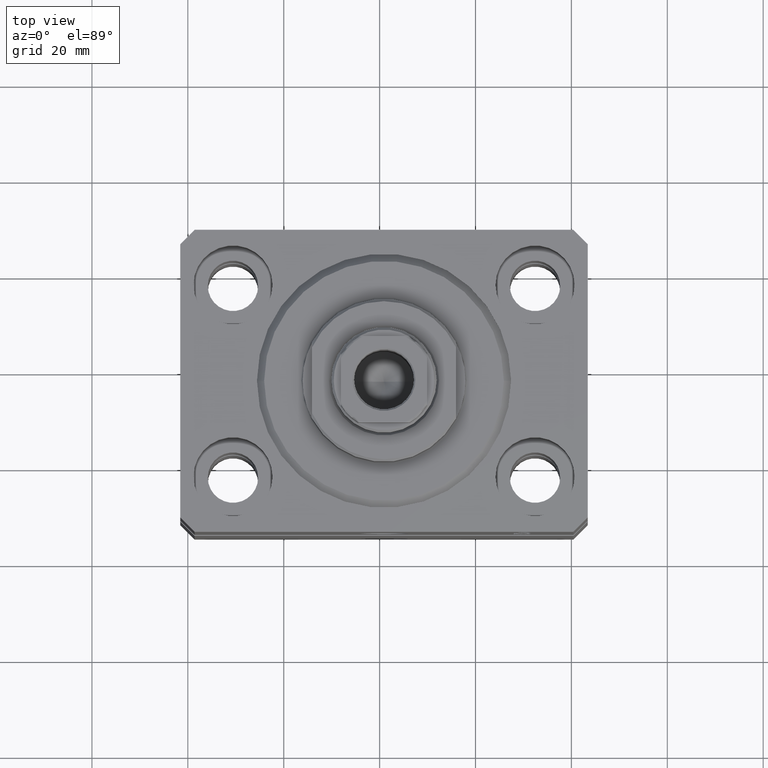
[diagram: clean part render]
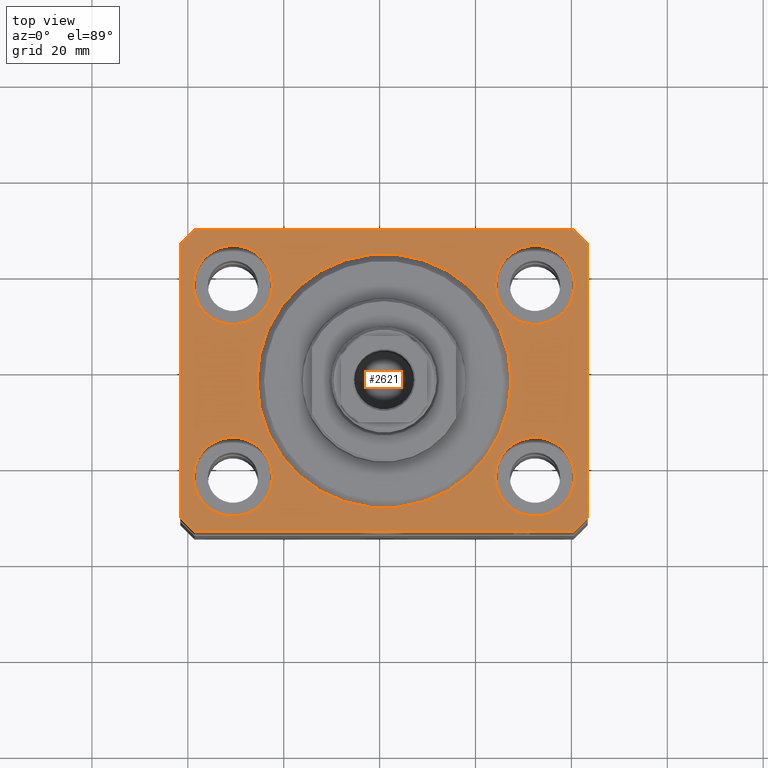
[diagram: same view with one face highlighted and labeled with its STEP entity id]
A machine part, top view. The second image highlights one B-rep face of the part: STEP entity #2621.
In plain terms, the highlighted planar face has unit normal (0, 0, 1).
Its self-contained STEP definition (entity closure, byte-faithful):
#25 = VECTOR ( 'NONE', #38405, 1000.000000000000000 ) ;
#99 = DIRECTION ( 'NONE',  ( 0.000000000000000000, 0.000000000000000000, 1.000000000000000000 ) ) ;
#481 = ORIENTED_EDGE ( 'NONE', *, *, #42630, .F. ) ;
#714 = EDGE_CURVE ( 'NONE', #16964, #24042, #9765, .T. ) ;
#796 = VERTEX_POINT ( 'NONE', #5926 ) ;
#999 = DIRECTION ( 'NONE',  ( -1.000000000000000000, 0.000000000000000000, 0.000000000000000000 ) ) ;
#1138 = CARTESIAN_POINT ( 'NONE',  ( -42.50000000000000000, -28.50000000000000000, 0.000000000000000000 ) ) ;
#1451 = EDGE_LOOP ( 'NONE', ( #36837, #4136 ) ) ;
#1912 = CARTESIAN_POINT ( 'NONE',  ( 39.50000000000000711, -31.50000000000000000, 0.000000000000000000 ) ) ;
#2087 = DIRECTION ( 'NONE',  ( 0.000000000000000000, 0.000000000000000000, 1.000000000000000000 ) ) ;
#2297 = EDGE_CURVE ( 'NONE', #43677, #14135, #23418, .T. ) ;
#2621 = ADVANCED_FACE ( 'NONE', ( #7728, #4302, #24265, #21546, #7274, #34903 ), #14310, .T. ) ;
#3280 = VECTOR ( 'NONE', #19791, 1000.000000000000000 ) ;
#3339 = CIRCLE ( 'NONE', #40251, 8.249999999999992895 ) ;
#4080 = AXIS2_PLACEMENT_3D ( 'NONE', #23536, #37135, #38034 ) ;
#4136 = ORIENTED_EDGE ( 'NONE', *, *, #43919, .F. ) ;
#4302 = FACE_BOUND ( 'NONE', #43721, .T. ) ;
#4804 = AXIS2_PLACEMENT_3D ( 'NONE', #25443, #22268, #29060 ) ;
#4879 = ORIENTED_EDGE ( 'NONE', *, *, #43201, .T. ) ;
#4895 = CARTESIAN_POINT ( 'NONE',  ( -39.50000000000000711, 31.50000000000000000, 0.000000000000000000 ) ) ;
#5360 = ORIENTED_EDGE ( 'NONE', *, *, #12601, .T. ) ;
#5586 = EDGE_CURVE ( 'NONE', #10902, #27796, #5672, .T. ) ;
#5672 = LINE ( 'NONE', #41003, #20652 ) ;
#5702 = CIRCLE ( 'NONE', #43328, 8.250000000000000000 ) ;
#5926 = CARTESIAN_POINT ( 'NONE',  ( 39.74999999999999289, 20.00000000000001066, 0.000000000000000000 ) ) ;
#6223 = DIRECTION ( 'NONE',  ( -0.7071067811865471286, -0.7071067811865479058, 0.000000000000000000 ) ) ;
#7162 = CARTESIAN_POINT ( 'NONE',  ( 42.50000000000051870, 28.49999999999995381, 0.000000000000000000 ) ) ;
#7274 = FACE_BOUND ( 'NONE', #18337, .T. ) ;
#7728 = FACE_BOUND ( 'NONE', #1451, .T. ) ;
#7824 = DIRECTION ( 'NONE',  ( 1.000000000000000000, 0.000000000000000000, 0.000000000000000000 ) ) ;
#8040 = CARTESIAN_POINT ( 'NONE',  ( 31.50000000000000000, -20.00000000000000000, 0.000000000000000000 ) ) ;
#8324 = AXIS2_PLACEMENT_3D ( 'NONE', #12294, #22705, #9553 ) ;
#8482 = AXIS2_PLACEMENT_3D ( 'NONE', #26571, #2087, #29963 ) ;
#9297 = VERTEX_POINT ( 'NONE', #36724 ) ;
#9448 = CIRCLE ( 'NONE', #22459, 8.249999999999992895 ) ;
#9553 = DIRECTION ( 'NONE',  ( 1.000000000000000000, 0.000000000000000000, 0.000000000000000000 ) ) ;
#9765 = CIRCLE ( 'NONE', #8324, 8.250000000000000000 ) ;
#9780 = CARTESIAN_POINT ( 'NONE',  ( 42.50000000000000711, -28.50000000000000355, 0.000000000000000000 ) ) ;
#10135 = VERTEX_POINT ( 'NONE', #25364 ) ;
#10189 = CARTESIAN_POINT ( 'NONE',  ( 23.25000000000000355, 20.00000000000001066, 0.000000000000000000 ) ) ;
#10238 = ORIENTED_EDGE ( 'NONE', *, *, #27822, .F. ) ;
#10444 = CARTESIAN_POINT ( 'NONE',  ( 0.000000000000000000, 0.000000000000000000, 0.000000000000000000 ) ) ;
#10902 = VERTEX_POINT ( 'NONE', #18016 ) ;
#11445 = CARTESIAN_POINT ( 'NONE',  ( -42.50000000000000000, -28.50000000000000000, 0.000000000000000000 ) ) ;
#11653 = LINE ( 'NONE', #21183, #25 ) ;
#11797 = CARTESIAN_POINT ( 'NONE',  ( 0.000000000000000000, 0.000000000000000000, 0.000000000000000000 ) ) ;
#11886 = EDGE_CURVE ( 'NONE', #27796, #23685, #32949, .T. ) ;
#12294 = CARTESIAN_POINT ( 'NONE',  ( -31.50000000000000000, 20.00000000000000000, 0.000000000000000000 ) ) ;
#12601 = EDGE_CURVE ( 'NONE', #14135, #12704, #20517, .T. ) ;
#12704 = VERTEX_POINT ( 'NONE', #7162 ) ;
#14135 = VERTEX_POINT ( 'NONE', #9780 ) ;
#14234 = AXIS2_PLACEMENT_3D ( 'NONE', #19365, #36359, #39776 ) ;
#14276 = CARTESIAN_POINT ( 'NONE',  ( 26.50000000000000355, 0.000000000000000000, 0.000000000000000000 ) ) ;
#14310 = PLANE ( 'NONE',  #31533 ) ;
#14421 = VECTOR ( 'NONE', #30719, 1000.000000000000000 ) ;
#14594 = ORIENTED_EDGE ( 'NONE', *, *, #44791, .F. ) ;
#15586 = VERTEX_POINT ( 'NONE', #4895 ) ;
#15998 = LINE ( 'NONE', #20048, #33896 ) ;
#16177 = CARTESIAN_POINT ( 'NONE',  ( -31.50000000000000000, 20.00000000000000000, 0.000000000000000000 ) ) ;
#16452 = EDGE_CURVE ( 'NONE', #23685, #43677, #11653, .T. ) ;
#16899 = CARTESIAN_POINT ( 'NONE',  ( 42.50000000000000711, -28.50000000000000355, 0.000000000000000000 ) ) ;
#16964 = VERTEX_POINT ( 'NONE', #24020 ) ;
#17647 = EDGE_CURVE ( 'NONE', #28781, #15586, #18236, .T. ) ;
#17851 = CIRCLE ( 'NONE', #4080, 8.249999999999992895 ) ;
#18016 = CARTESIAN_POINT ( 'NONE',  ( -42.50000000000000000, 28.50000000000000000, 0.000000000000000000 ) ) ;
#18236 = LINE ( 'NONE', #42256, #43383 ) ;
#18337 = EDGE_LOOP ( 'NONE', ( #14594, #10238 ) ) ;
#18596 = CIRCLE ( 'NONE', #8482, 26.50000000000000355 ) ;
#18810 = DIRECTION ( 'NONE',  ( -0.7071067811865356934, 0.7071067811865594521, 0.000000000000000000 ) ) ;
#18948 = ORIENTED_EDGE ( 'NONE', *, *, #39623, .F. ) ;
#19365 = CARTESIAN_POINT ( 'NONE',  ( 31.50000000000000000, -20.00000000000000000, 0.000000000000000000 ) ) ;
#19791 = DIRECTION ( 'NONE',  ( 0.7071067811865483499, 0.7071067811865466846, 0.000000000000000000 ) ) ;
#19907 = VECTOR ( 'NONE', #18810, 1000.000000000000114 ) ;
#20048 = CARTESIAN_POINT ( 'NONE',  ( -39.50000000000000711, 31.50000000000000000, 0.000000000000000000 ) ) ;
#20100 = DIRECTION ( 'NONE',  ( 1.000000000000000000, 0.000000000000000000, 0.000000000000000000 ) ) ;
#20273 = VERTEX_POINT ( 'NONE', #10189 ) ;
#20517 = LINE ( 'NONE', #16899, #14421 ) ;
#20652 = VECTOR ( 'NONE', #26740, 1000.000000000000000 ) ;
#20691 = EDGE_CURVE ( 'NONE', #31907, #10135, #9448, .T. ) ;
#21183 = CARTESIAN_POINT ( 'NONE',  ( -39.50000000000000711, -31.50000000000000000, 0.000000000000000000 ) ) ;
#21195 = ORIENTED_EDGE ( 'NONE', *, *, #20691, .F. ) ;
#21546 = FACE_BOUND ( 'NONE', #27476, .T. ) ;
#21689 = ORIENTED_EDGE ( 'NONE', *, *, #17647, .T. ) ;
#22268 = DIRECTION ( 'NONE',  ( 0.000000000000000000, 0.000000000000000000, 1.000000000000000000 ) ) ;
#22459 = AXIS2_PLACEMENT_3D ( 'NONE', #8040, #39301, #43367 ) ;
#22535 = CARTESIAN_POINT ( 'NONE',  ( 39.50000000000000711, -31.50000000000000000, 0.000000000000000000 ) ) ;
#22705 = DIRECTION ( 'NONE',  ( 0.000000000000000000, 0.000000000000000000, 1.000000000000000000 ) ) ;
#22896 = CIRCLE ( 'NONE', #4804, 8.250000000000000000 ) ;
#23145 = ORIENTED_EDGE ( 'NONE', *, *, #714, .F. ) ;
#23417 = CIRCLE ( 'NONE', #43664, 26.50000000000000355 ) ;
#23418 = LINE ( 'NONE', #22535, #3280 ) ;
#23536 = CARTESIAN_POINT ( 'NONE',  ( 31.50000000000000000, 20.00000000000001066, 0.000000000000000000 ) ) ;
#23685 = VERTEX_POINT ( 'NONE', #40841 ) ;
#23724 = DIRECTION ( 'NONE',  ( 0.000000000000000000, 0.000000000000000000, 1.000000000000000000 ) ) ;
#23925 = VERTEX_POINT ( 'NONE', #14276 ) ;
#24020 = CARTESIAN_POINT ( 'NONE',  ( -39.75000000000000000, 20.00000000000000000, 0.000000000000000000 ) ) ;
#24042 = VERTEX_POINT ( 'NONE', #43256 ) ;
#24265 = FACE_BOUND ( 'NONE', #34840, .T. ) ;
#24774 = LINE ( 'NONE', #38600, #19907 ) ;
#25180 = DIRECTION ( 'NONE',  ( 1.000000000000000000, 0.000000000000000000, 0.000000000000000000 ) ) ;
#25364 = CARTESIAN_POINT ( 'NONE',  ( 39.74999999999999289, -20.00000000000000000, 0.000000000000000000 ) ) ;
#25443 = CARTESIAN_POINT ( 'NONE',  ( -31.50000000000000000, -20.00000000000000000, 0.000000000000000000 ) ) ;
#25616 = DIRECTION ( 'NONE',  ( 0.000000000000000000, 0.000000000000000000, 1.000000000000000000 ) ) ;
#26571 = CARTESIAN_POINT ( 'NONE',  ( 0.000000000000000000, 0.000000000000000000, 0.000000000000000000 ) ) ;
#26740 = DIRECTION ( 'NONE',  ( 0.000000000000000000, -1.000000000000000000, 0.000000000000000000 ) ) ;
#27476 = EDGE_LOOP ( 'NONE', ( #481, #23145 ) ) ;
#27796 = VERTEX_POINT ( 'NONE', #1138 ) ;
#27822 = EDGE_CURVE ( 'NONE', #9297, #23925, #23417, .T. ) ;
#27887 = DIRECTION ( 'NONE',  ( 1.000000000000000000, 0.000000000000000000, -0.000000000000000000 ) ) ;
#27973 = CIRCLE ( 'NONE', #14234, 8.249999999999992895 ) ;
#28205 = CARTESIAN_POINT ( 'NONE',  ( 31.50000000000000000, 20.00000000000001066, 0.000000000000000000 ) ) ;
#28781 = VERTEX_POINT ( 'NONE', #37045 ) ;
#29060 = DIRECTION ( 'NONE',  ( 1.000000000000000000, 0.000000000000000000, 0.000000000000000000 ) ) ;
#29499 = ORIENTED_EDGE ( 'NONE', *, *, #16452, .T. ) ;
#29963 = DIRECTION ( 'NONE',  ( 1.000000000000000000, 0.000000000000000000, 0.000000000000000000 ) ) ;
#30433 = DIRECTION ( 'NONE',  ( 0.000000000000000000, 0.000000000000000000, 1.000000000000000000 ) ) ;
#30595 = EDGE_LOOP ( 'NONE', ( #21689, #4879, #31276, #40618, #29499, #43768, #5360, #31717 ) ) ;
#30719 = DIRECTION ( 'NONE',  ( 8.886653596232072440E-15, 1.000000000000000000, 0.000000000000000000 ) ) ;
#31276 = ORIENTED_EDGE ( 'NONE', *, *, #5586, .T. ) ;
#31533 = AXIS2_PLACEMENT_3D ( 'NONE', #10444, #38312, #27887 ) ;
#31717 = ORIENTED_EDGE ( 'NONE', *, *, #36989, .T. ) ;
#31907 = VERTEX_POINT ( 'NONE', #32120 ) ;
#32120 = CARTESIAN_POINT ( 'NONE',  ( 23.25000000000000355, -20.00000000000000000, 0.000000000000000000 ) ) ;
#32898 = EDGE_CURVE ( 'NONE', #39154, #42632, #41529, .T. ) ;
#32949 = LINE ( 'NONE', #11445, #44806 ) ;
#33476 = CARTESIAN_POINT ( 'NONE',  ( -31.50000000000000000, -20.00000000000000000, 0.000000000000000000 ) ) ;
#33896 = VECTOR ( 'NONE', #6223, 1000.000000000000000 ) ;
#33924 = CARTESIAN_POINT ( 'NONE',  ( -23.25000000000000000, -20.00000000000000000, 0.000000000000000000 ) ) ;
#34840 = EDGE_LOOP ( 'NONE', ( #18948, #37275 ) ) ;
#34903 = FACE_OUTER_BOUND ( 'NONE', #30595, .T. ) ;
#36359 = DIRECTION ( 'NONE',  ( 0.000000000000000000, 0.000000000000000000, 1.000000000000000000 ) ) ;
#36724 = CARTESIAN_POINT ( 'NONE',  ( -26.50000000000000355, 3.245314017740485765E-15, 0.000000000000000000 ) ) ;
#36837 = ORIENTED_EDGE ( 'NONE', *, *, #32898, .F. ) ;
#36989 = EDGE_CURVE ( 'NONE', #12704, #28781, #24774, .T. ) ;
#37045 = CARTESIAN_POINT ( 'NONE',  ( 39.50000000000056843, 31.50000000000000000, 0.000000000000000000 ) ) ;
#37135 = DIRECTION ( 'NONE',  ( 0.000000000000000000, 0.000000000000000000, 1.000000000000000000 ) ) ;
#37275 = ORIENTED_EDGE ( 'NONE', *, *, #44354, .F. ) ;
#38034 = DIRECTION ( 'NONE',  ( 1.000000000000000000, 0.000000000000000000, 0.000000000000000000 ) ) ;
#38312 = DIRECTION ( 'NONE',  ( 0.000000000000000000, 0.000000000000000000, 1.000000000000000000 ) ) ;
#38405 = DIRECTION ( 'NONE',  ( 1.000000000000000000, 0.000000000000000000, 0.000000000000000000 ) ) ;
#38600 = CARTESIAN_POINT ( 'NONE',  ( 42.50000000000051870, 28.49999999999995381, 0.000000000000000000 ) ) ;
#38759 = ORIENTED_EDGE ( 'NONE', *, *, #43733, .F. ) ;
#39154 = VERTEX_POINT ( 'NONE', #33924 ) ;
#39301 = DIRECTION ( 'NONE',  ( 0.000000000000000000, 0.000000000000000000, 1.000000000000000000 ) ) ;
#39315 = DIRECTION ( 'NONE',  ( 0.7071067811865471286, -0.7071067811865479058, 0.000000000000000000 ) ) ;
#39623 = EDGE_CURVE ( 'NONE', #796, #20273, #3339, .T. ) ;
#39776 = DIRECTION ( 'NONE',  ( 1.000000000000000000, 0.000000000000000000, 0.000000000000000000 ) ) ;
#40211 = CARTESIAN_POINT ( 'NONE',  ( -39.75000000000000000, -20.00000000000000000, 0.000000000000000000 ) ) ;
#40251 = AXIS2_PLACEMENT_3D ( 'NONE', #28205, #99, #7824 ) ;
#40618 = ORIENTED_EDGE ( 'NONE', *, *, #11886, .T. ) ;
#40841 = CARTESIAN_POINT ( 'NONE',  ( -39.50000000000000711, -31.50000000000000000, 0.000000000000000000 ) ) ;
#41003 = CARTESIAN_POINT ( 'NONE',  ( -42.50000000000000000, 28.50000000000000000, 0.000000000000000000 ) ) ;
#41529 = CIRCLE ( 'NONE', #44392, 8.250000000000000000 ) ;
#42256 = CARTESIAN_POINT ( 'NONE',  ( 39.50000000000056843, 31.50000000000000000, 0.000000000000000000 ) ) ;
#42630 = EDGE_CURVE ( 'NONE', #24042, #16964, #5702, .T. ) ;
#42632 = VERTEX_POINT ( 'NONE', #40211 ) ;
#43201 = EDGE_CURVE ( 'NONE', #15586, #10902, #15998, .T. ) ;
#43256 = CARTESIAN_POINT ( 'NONE',  ( -23.25000000000000000, 20.00000000000000000, 0.000000000000000000 ) ) ;
#43328 = AXIS2_PLACEMENT_3D ( 'NONE', #16177, #30433, #44473 ) ;
#43367 = DIRECTION ( 'NONE',  ( 1.000000000000000000, 0.000000000000000000, 0.000000000000000000 ) ) ;
#43383 = VECTOR ( 'NONE', #999, 1000.000000000000000 ) ;
#43664 = AXIS2_PLACEMENT_3D ( 'NONE', #11797, #25616, #25180 ) ;
#43677 = VERTEX_POINT ( 'NONE', #1912 ) ;
#43721 = EDGE_LOOP ( 'NONE', ( #38759, #21195 ) ) ;
#43733 = EDGE_CURVE ( 'NONE', #10135, #31907, #27973, .T. ) ;
#43768 = ORIENTED_EDGE ( 'NONE', *, *, #2297, .T. ) ;
#43919 = EDGE_CURVE ( 'NONE', #42632, #39154, #22896, .T. ) ;
#44354 = EDGE_CURVE ( 'NONE', #20273, #796, #17851, .T. ) ;
#44392 = AXIS2_PLACEMENT_3D ( 'NONE', #33476, #23724, #20100 ) ;
#44473 = DIRECTION ( 'NONE',  ( 1.000000000000000000, 0.000000000000000000, 0.000000000000000000 ) ) ;
#44791 = EDGE_CURVE ( 'NONE', #23925, #9297, #18596, .T. ) ;
#44806 = VECTOR ( 'NONE', #39315, 1000.000000000000000 ) ;